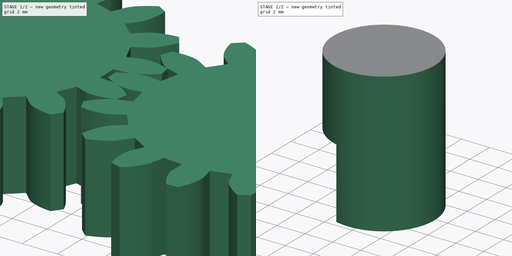
[diagram: build sequence overview — one tinted view per stage of 2, left to right]
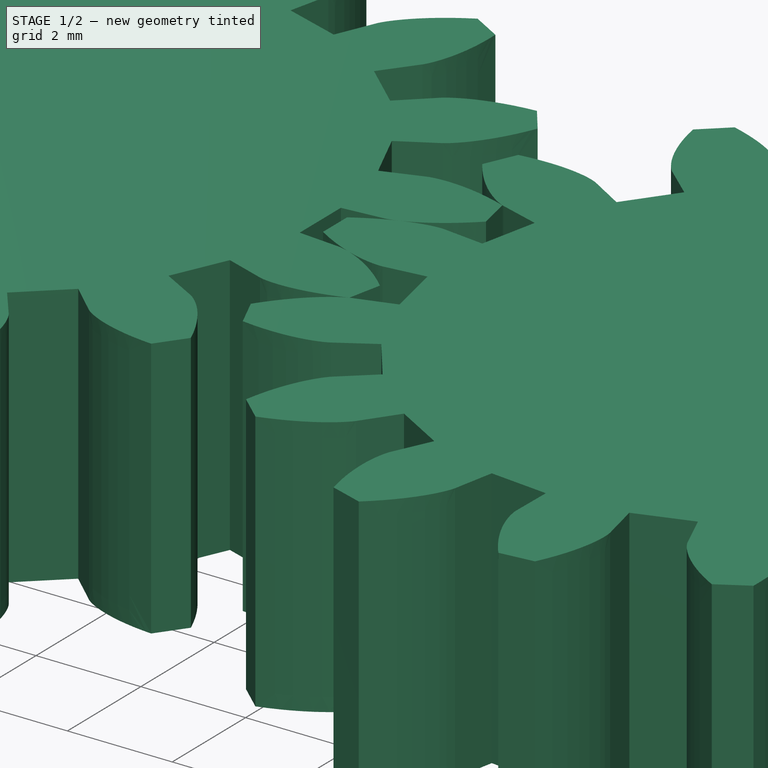
[diagram: stage 1 of 2 — iso view after this stage's code; geometry added in this stage tinted green]
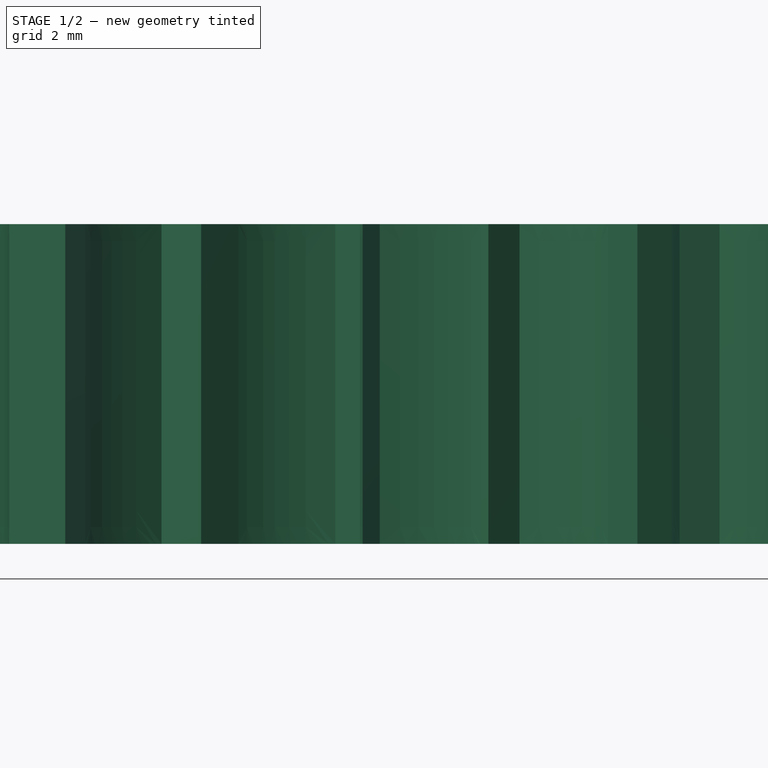
[diagram: stage 1 of 2 — front view after this stage's code; geometry added in this stage tinted green]
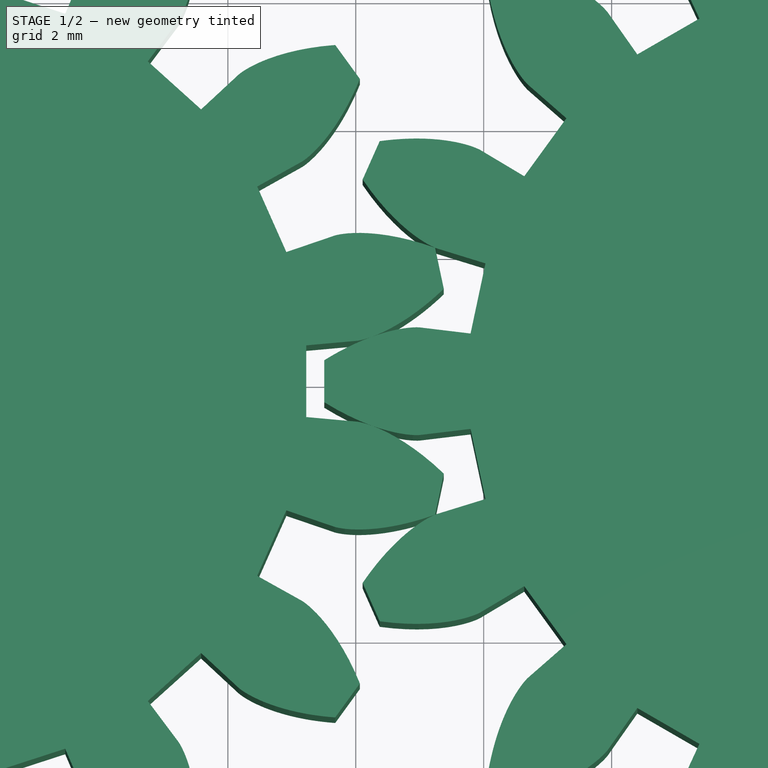
[diagram: stage 1 of 2 — top view after this stage's code; geometry added in this stage tinted green]
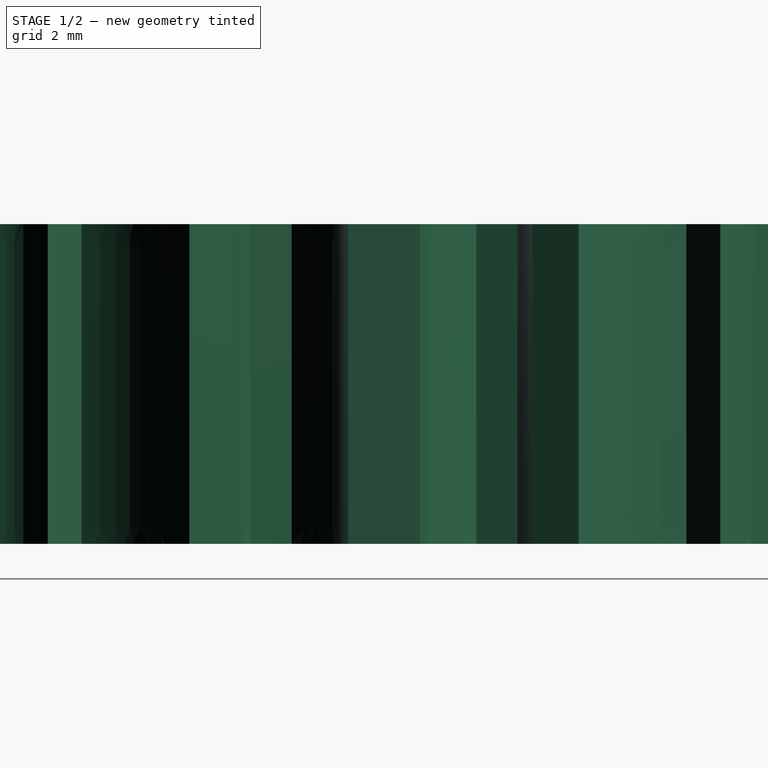
[diagram: stage 1 of 2 — right view after this stage's code; geometry added in this stage tinted green]
FCSTD DOCUMENT  (FreeCAD 0.21R33771 (Git))
Label: gear_pair
License: All rights reserved
LicenseURL: http://en.wikipedia.org/wiki/All_rights_reserved
objects: PartDesign::FeaturePython×2, PartDesign::Body×2, Sketcher::SketchObject×2, PartDesign::ShapeBinder×1, PartDesign::Pad×1, PartDesign::Pocket×1
note: 11 computed .brp shape members not serialized (recipe doc carries the construction recipe); baked Part::Feature solids carry a one-line shape summary decoded from their .brp

FEATURE [PartDesign::FeaturePython] InvoluteGear  # WARN: FeaturePython — macro-defined, semantics opaque (R4)
  AttacherType = Attacher::AttachEngine3D
  Placement = pos=(15,0,0) rot=(0,0,-1;2.30383rad)
  angular_backlash = 0
  backlash = 0
  beta = 0
  clearance = 0.25
  da = 17
  df = 12.5
  double_helix = false
  dw = 15
  head = 0
  head_fillet = 0
  height = 5
  module = 1
  numpoints = 20
  pressure_angle = 20
  properties_from_tool = false
  reversed_backlash = false
  root_fillet = 0
  shift = 0
  simple = false
  teeth = 15
  transverse_pitch = 3.14159
  traverse_module = 1
  undercut = false
  version = 1.2.0
  expr: angular_backlash = backlash / dw * 360 ° / pi
FEATURE [PartDesign::FeaturePython] InvoluteGear001  # WARN: FeaturePython — macro-defined, semantics opaque (R4)
  AttacherType = Attacher::AttachEngine3D
  BaseFeature = -> InvoluteGear
  Placement = pos=(30,0,0) rot=(0,0,1;-34.5575rad)
  angular_backlash = 0
  backlash = 0
  beta = 0
  clearance = 0.25
  da = 17
  df = 12.5
  double_helix = false
  dw = 15
  head = 0
  head_fillet = 0
  height = 5
  module = 1
  numpoints = 20
  pressure_angle = 20
  properties_from_tool = false
  reversed_backlash = false
  root_fillet = 0
  shift = 0
  simple = false
  teeth = 15
  transverse_pitch = 3.14159
  traverse_module = 1
  undercut = false
  version = 1.2.0
  expr: .Placement.Rotation.Angle = -InvoluteGear.Placement.Rotation.Angle * InvoluteGear.teeth
  expr: angular_backlash = backlash / dw * 360 ° / pi
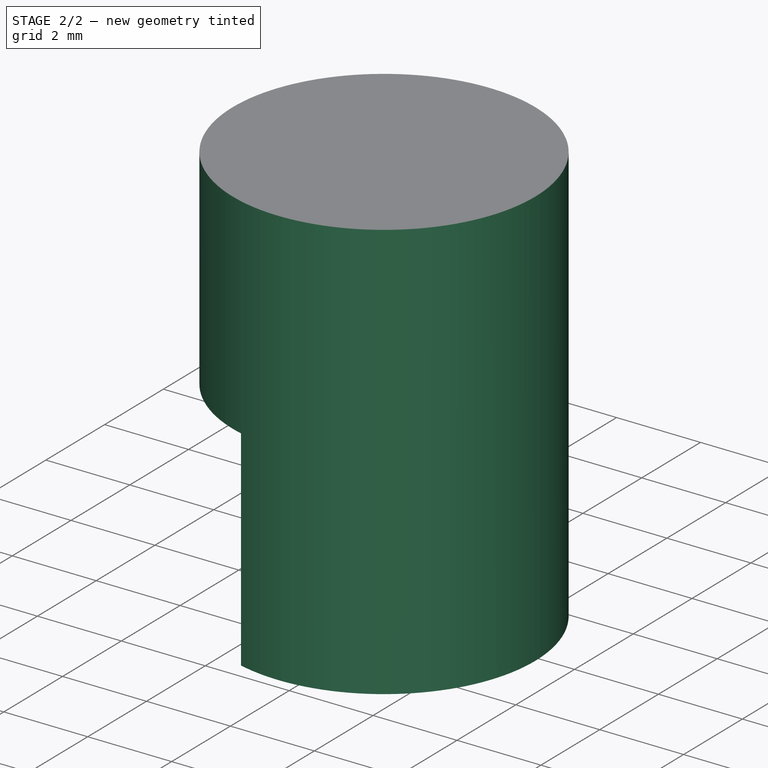
[diagram: stage 2 of 2 — iso view after this stage's code; geometry added in this stage tinted green]
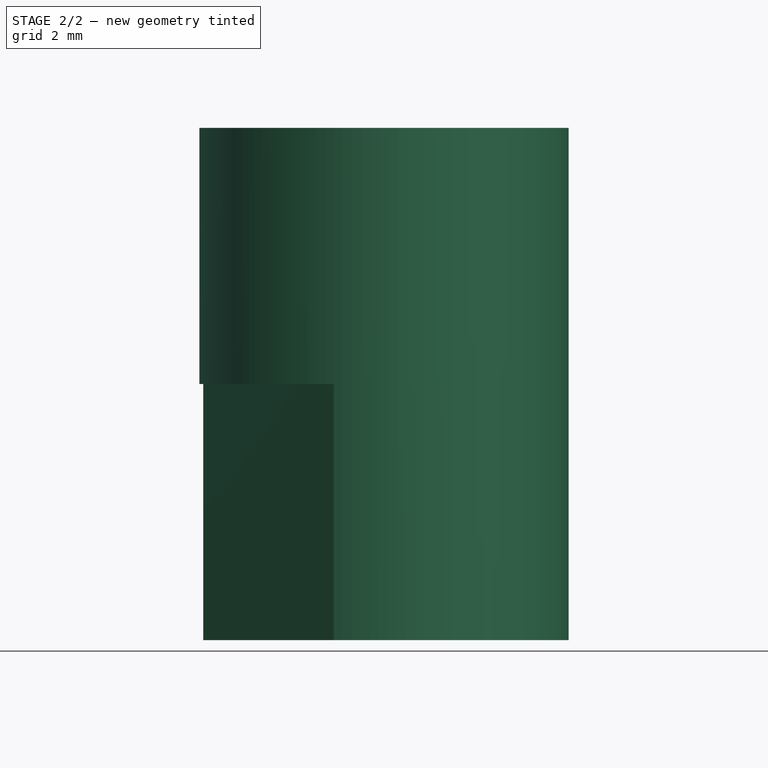
[diagram: stage 2 of 2 — front view after this stage's code; geometry added in this stage tinted green]
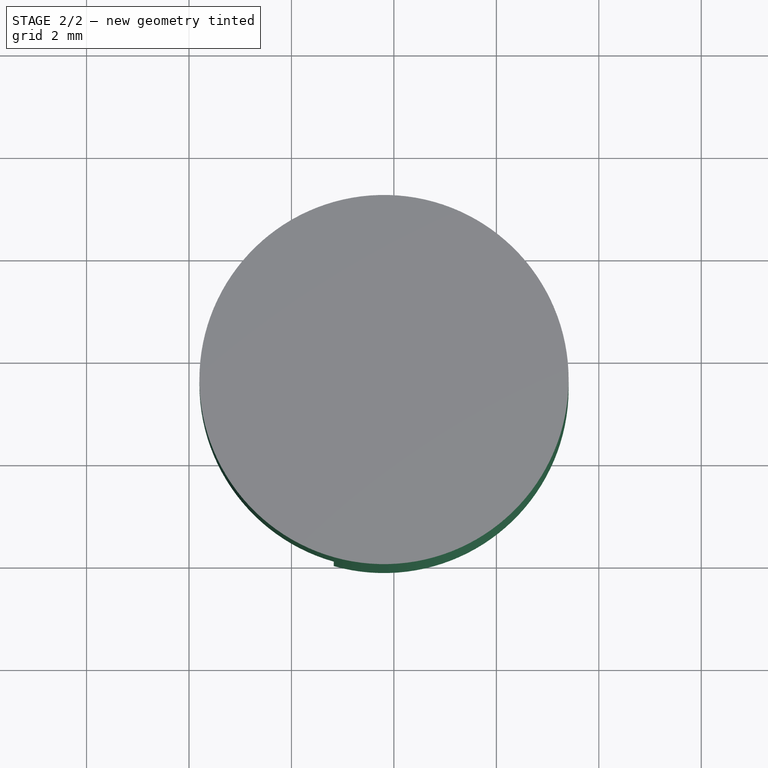
[diagram: stage 2 of 2 — top view after this stage's code; geometry added in this stage tinted green]
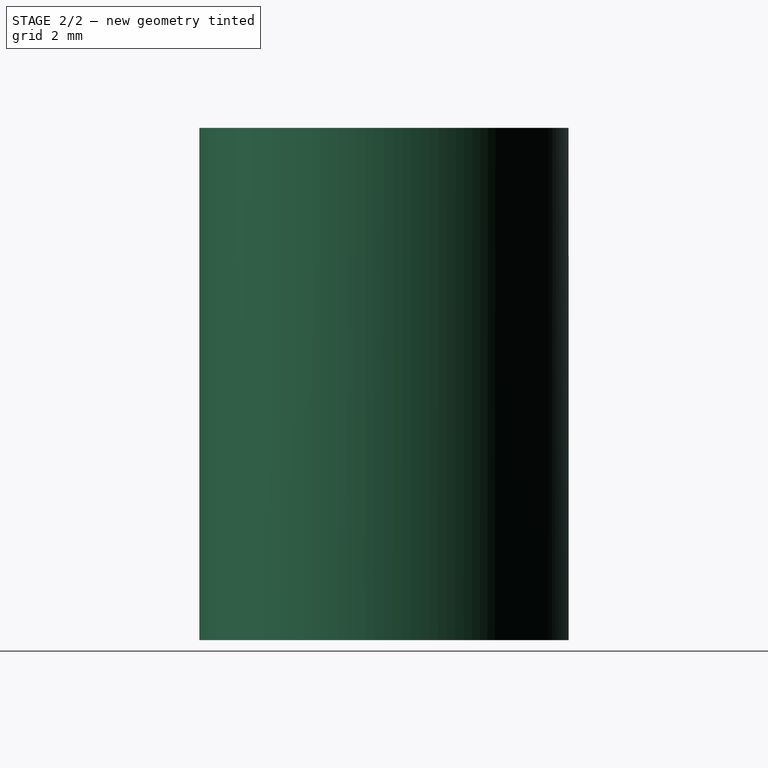
[diagram: stage 2 of 2 — right view after this stage's code; geometry added in this stage tinted green]
FEATURE [PartDesign::Body] Body
  Group = -> [InvoluteGear,InvoluteGear001]
  Origin = -> Origin
  Placement = pos=(0,0,0) rot=(0,0,-1;0.05236rad)
  Tip = -> InvoluteGear001
  expr: .Placement.Rotation.Angle = 3 °
FEATURE [PartDesign::ShapeBinder] ReferenceInvoluteGear001
  Placement = pos=(30,0,0) rot=(0,0,1;3.14159rad)
  Support = -> [InvoluteGear001]
  TraceSupport = false
FEATURE [Sketcher::SketchObject] Sketch
  FullyConstrained = false
  MapMode = 5
  Placement = pos=(30,0,0) rot=(0,1,0;3.14159rad)
  Support = -> [ReferenceInvoluteGear001]
  sketch-geometry (1):
    g0: Circle CenterX=-1.80673 CenterY=-0.495497 CenterZ=0 NormalX=0 NormalY=0 NormalZ=1 AngleXU=0 Radius=3.60431
FEATURE [PartDesign::Pad] Pad
  Direction = (0,0,-1)
  Length = 10
  Length2 = 10
  Placement = pos=(30,0,0) rot=(0,0,1;3.14159rad)
  Profile = -> Sketch
  ReferenceAxis = -> Sketch [N_Axis]
  Refine = true
  Type = 0
FEATURE [Sketcher::SketchObject] Sketch001
  AttachmentOffset = pos=(0,0,0) rot=(0,0,1;2.30383rad)
  FullyConstrained = false
  MapMode = 5
  Placement = pos=(30,0,-10) rot=(0.913545,0.406737,0;3.14159rad)
  Support = -> [Pad]
  expr: .AttachmentOffset.Rotation.Angle = InvoluteGear.Placement.Rotation.Angle
  sketch-geometry (5):
    g0: LineSegment StartX=-3.15009 StartY=-4.8787 StartZ=0 EndX=-3.15009 EndY=3.26671 EndZ=0
    g1: LineSegment StartX=-3.15009 StartY=3.26671 StartZ=0 EndX=-0.97798 EndY=3.26671 EndZ=0
    g2: LineSegment StartX=-0.97798 StartY=3.26671 StartZ=0 EndX=-0.97798 EndY=-4.8787 EndZ=0
    g3: LineSegment StartX=-0.97798 StartY=-4.8787 StartZ=0 EndX=-3.15009 EndY=-4.8787 EndZ=0
    g4: GeomPoint X=-2.06404 Y=-0.805995 Z=0
  constraints (9):
    c: Coincident(g0,g1)
    c: Coincident(g1,g2)
    c: Coincident(g2,g3)
    c: Coincident(g3,g0)
    c: Horizontal(g1)
    c: Horizontal(g3)
    c: Vertical(g0)
    c: Vertical(g2)
    c: Symmetric(g1,g0,g4)
FEATURE [PartDesign::Pocket] Pocket
  BaseFeature = -> Pad
  Direction = (0,0,1)
  Length = 5
  Length2 = 5
  Placement = pos=(30,0,0) rot=(0,0,1;3.14159rad)
  Profile = -> Sketch001
  ReferenceAxis = -> Sketch001 [N_Axis]
  Refine = true
  Type = 0
FEATURE [PartDesign::Body] Body001
  Group = -> [ReferenceInvoluteGear001,Sketch,Pad,Sketch001,Pocket]
  Origin = -> Origin001
  Tip = -> Pocket
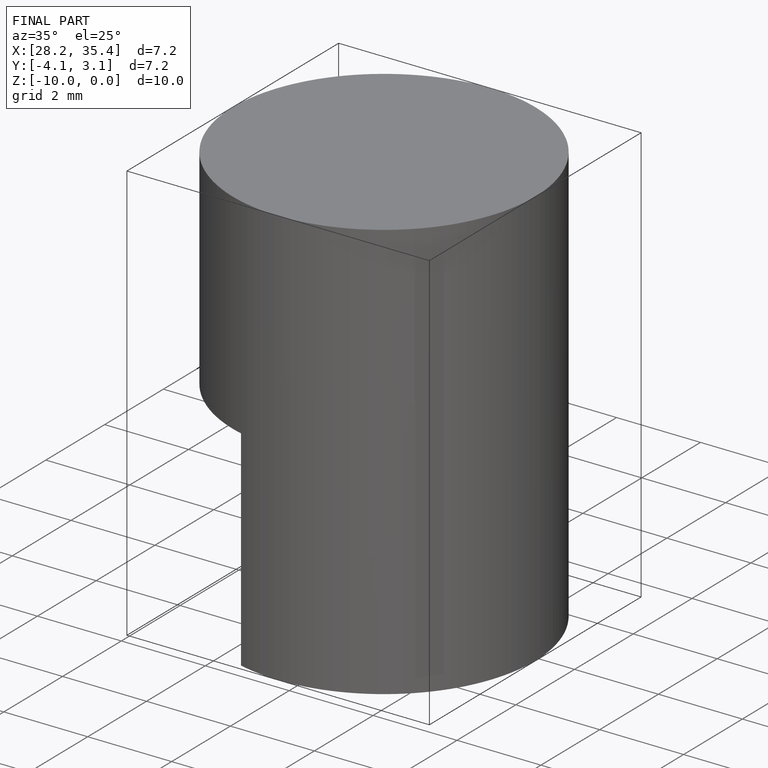
[diagram: finished part — iso view with bounding-box wireframe]
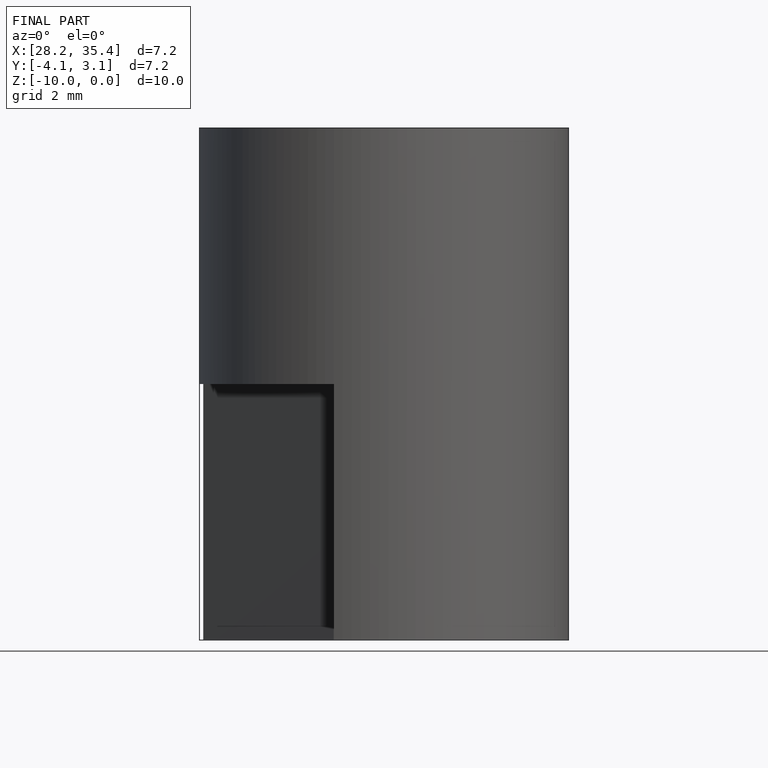
[diagram: finished part — front view with bounding-box wireframe]
